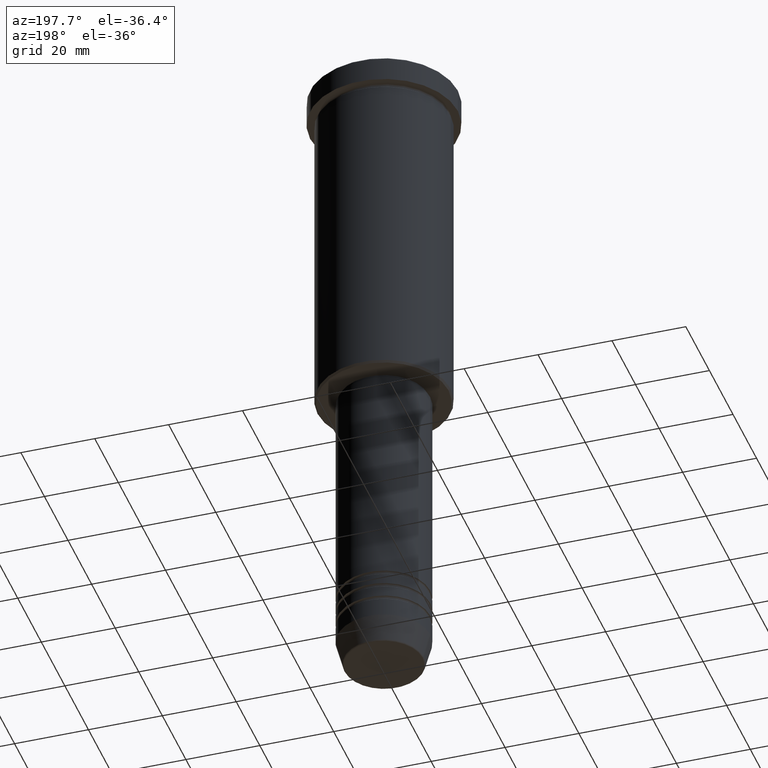
[diagram: clean part render]
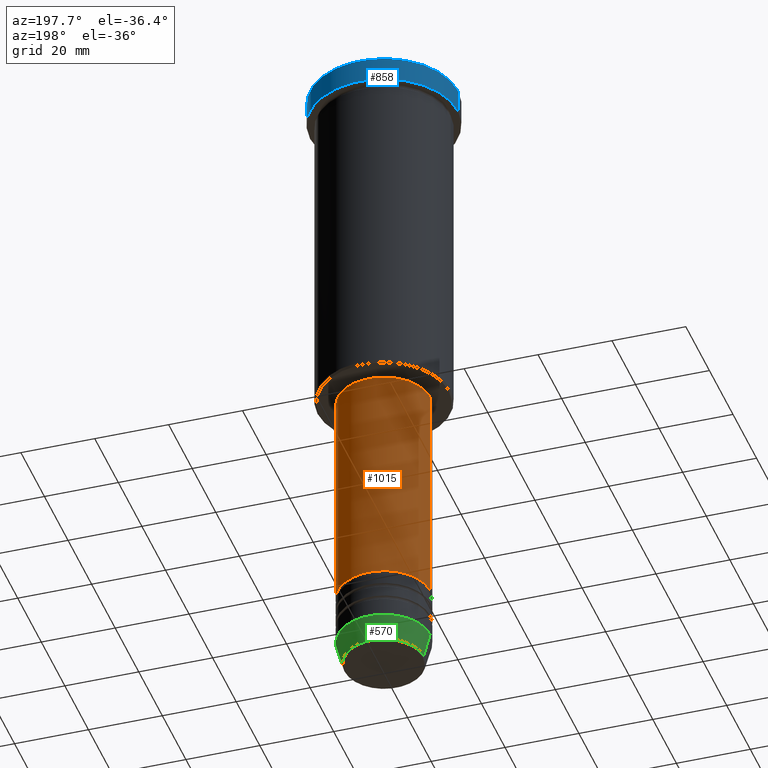
[diagram: same view with three faces highlighted in distinct colors, each labeled with its STEP entity id]
A machine part, auxiliary view with three faces highlighted in distinct colors.
Their STEP definitions:

[orange] entity #1015 — the highlighted cylindrical surface (partial cylindrical patch) has radius 12.5 mm, axis along (-0, -0, 1).
#17 = VERTEX_POINT ( 'NONE', #422 ) ;
#55 = VERTEX_POINT ( 'NONE', #611 ) ;
#82 = DIRECTION ( 'NONE',  ( -0.000000000000000000, -0.000000000000000000, 1.000000000000000000 ) ) ;
#131 = EDGE_CURVE ( 'NONE', #17, #207, #653, .T. ) ;
#146 = VECTOR ( 'NONE', #723, 1000.000000000000000 ) ;
#154 = FACE_OUTER_BOUND ( 'NONE', #485, .T. ) ;
#207 = VERTEX_POINT ( 'NONE', #732 ) ;
#235 = EDGE_CURVE ( 'NONE', #331, #55, #950, .T. ) ;
#310 = CARTESIAN_POINT ( 'NONE',  ( 12.50000000000000000, 0.000000000000000000, -97.00000000000002842 ) ) ;
#331 = VERTEX_POINT ( 'NONE', #310 ) ;
#392 = VECTOR ( 'NONE', #707, 1000.000000000000000 ) ;
#422 = CARTESIAN_POINT ( 'NONE',  ( 12.50000000000000000, 0.000000000000000000, -159.0000000000000000 ) ) ;
#442 = DIRECTION ( 'NONE',  ( 1.000000000000000000, 0.000000000000000000, 0.000000000000000000 ) ) ;
#485 = EDGE_LOOP ( 'NONE', ( #1017, #1052, #756, #646 ) ) ;
#523 = CARTESIAN_POINT ( 'NONE',  ( 0.000000000000000000, 0.000000000000000000, 0.000000000000000000 ) ) ;
#588 = AXIS2_PLACEMENT_3D ( 'NONE', #523, #962, #1068 ) ;
#600 = CYLINDRICAL_SURFACE ( 'NONE', #588, 12.50000000000000000 ) ;
#611 = CARTESIAN_POINT ( 'NONE',  ( -12.50000000000000000, 1.530808498934191521E-15, -97.00000000000002842 ) ) ;
#625 = DIRECTION ( 'NONE',  ( -0.000000000000000000, -0.000000000000000000, 1.000000000000000000 ) ) ;
#633 = LINE ( 'NONE', #717, #146 ) ;
#646 = ORIENTED_EDGE ( 'NONE', *, *, #982, .F. ) ;
#653 = CIRCLE ( 'NONE', #990, 12.50000000000000000 ) ;
#707 = DIRECTION ( 'NONE',  ( -0.000000000000000000, -0.000000000000000000, 1.000000000000000000 ) ) ;
#717 = CARTESIAN_POINT ( 'NONE',  ( -12.50000000000000000, 1.530808498934191521E-15, 0.000000000000000000 ) ) ;
#723 = DIRECTION ( 'NONE',  ( -0.000000000000000000, -0.000000000000000000, 1.000000000000000000 ) ) ;
#732 = CARTESIAN_POINT ( 'NONE',  ( -12.50000000000000000, 1.530808498934191521E-15, -159.0000000000000000 ) ) ;
#756 = ORIENTED_EDGE ( 'NONE', *, *, #235, .F. ) ;
#950 = CIRCLE ( 'NONE', #1028, 12.50000000000000000 ) ;
#962 = DIRECTION ( 'NONE',  ( -0.000000000000000000, -0.000000000000000000, 1.000000000000000000 ) ) ;
#974 = LINE ( 'NONE', #1153, #392 ) ;
#982 = EDGE_CURVE ( 'NONE', #17, #331, #974, .T. ) ;
#990 = AXIS2_PLACEMENT_3D ( 'NONE', #1075, #625, #442 ) ;
#1015 = ADVANCED_FACE ( 'NONE', ( #154 ), #600, .T. ) ;
#1017 = ORIENTED_EDGE ( 'NONE', *, *, #131, .T. ) ;
#1028 = AXIS2_PLACEMENT_3D ( 'NONE', #1181, #82, #1093 ) ;
#1052 = ORIENTED_EDGE ( 'NONE', *, *, #1182, .T. ) ;
#1068 = DIRECTION ( 'NONE',  ( 1.000000000000000000, 0.000000000000000000, 0.000000000000000000 ) ) ;
#1075 = CARTESIAN_POINT ( 'NONE',  ( 0.000000000000000000, 0.000000000000000000, -159.0000000000000000 ) ) ;
#1093 = DIRECTION ( 'NONE',  ( 1.000000000000000000, 0.000000000000000000, 0.000000000000000000 ) ) ;
#1153 = CARTESIAN_POINT ( 'NONE',  ( 12.50000000000000000, 0.000000000000000000, 0.000000000000000000 ) ) ;
#1181 = CARTESIAN_POINT ( 'NONE',  ( 0.000000000000000000, 0.000000000000000000, -97.00000000000002842 ) ) ;
#1182 = EDGE_CURVE ( 'NONE', #207, #55, #633, .T. ) ;

[blue] entity #858 — the highlighted cylindrical surface (partial cylindrical patch) has radius 20 mm, axis along (-0, -0, 1).
#6 = DIRECTION ( 'NONE',  ( 1.000000000000000000, 0.000000000000000000, 0.000000000000000000 ) ) ;
#18 = ORIENTED_EDGE ( 'NONE', *, *, #631, .T. ) ;
#19 = CYLINDRICAL_SURFACE ( 'NONE', #1156, 20.00000000000000000 ) ;
#24 = CARTESIAN_POINT ( 'NONE',  ( -20.00000000000000000, 2.449293598294706513E-15, 0.000000000000000000 ) ) ;
#42 = ORIENTED_EDGE ( 'NONE', *, *, #947, .F. ) ;
#119 = EDGE_LOOP ( 'NONE', ( #681, #1032, #18, #42 ) ) ;
#180 = DIRECTION ( 'NONE',  ( 1.000000000000000000, 0.000000000000000000, 0.000000000000000000 ) ) ;
#183 = VERTEX_POINT ( 'NONE', #816 ) ;
#256 = LINE ( 'NONE', #510, #652 ) ;
#266 = CARTESIAN_POINT ( 'NONE',  ( 0.000000000000000000, 0.000000000000000000, -6.999999999999995559 ) ) ;
#315 = AXIS2_PLACEMENT_3D ( 'NONE', #1014, #831, #6 ) ;
#319 = VECTOR ( 'NONE', #695, 1000.000000000000000 ) ;
#346 = DIRECTION ( 'NONE',  ( -0.000000000000000000, -0.000000000000000000, 1.000000000000000000 ) ) ;
#354 = EDGE_CURVE ( 'NONE', #183, #712, #596, .T. ) ;
#369 = CARTESIAN_POINT ( 'NONE',  ( -20.00000000000000000, 2.449293598294706513E-15, -0.4999999999999970024 ) ) ;
#400 = FACE_OUTER_BOUND ( 'NONE', #119, .T. ) ;
#446 = CARTESIAN_POINT ( 'NONE',  ( 20.00000000000000000, 0.000000000000000000, -0.4999999999999970024 ) ) ;
#453 = DIRECTION ( 'NONE',  ( -0.000000000000000000, -0.000000000000000000, 1.000000000000000000 ) ) ;
#475 = CIRCLE ( 'NONE', #531, 20.00000000000000000 ) ;
#510 = CARTESIAN_POINT ( 'NONE',  ( 20.00000000000000000, 0.000000000000000000, 0.000000000000000000 ) ) ;
#531 = AXIS2_PLACEMENT_3D ( 'NONE', #266, #453, #180 ) ;
#596 = LINE ( 'NONE', #24, #319 ) ;
#631 = EDGE_CURVE ( 'NONE', #712, #1139, #916, .T. ) ;
#652 = VECTOR ( 'NONE', #346, 1000.000000000000000 ) ;
#681 = ORIENTED_EDGE ( 'NONE', *, *, #747, .T. ) ;
#695 = DIRECTION ( 'NONE',  ( -0.000000000000000000, -0.000000000000000000, 1.000000000000000000 ) ) ;
#712 = VERTEX_POINT ( 'NONE', #369 ) ;
#747 = EDGE_CURVE ( 'NONE', #770, #183, #475, .T. ) ;
#770 = VERTEX_POINT ( 'NONE', #860 ) ;
#816 = CARTESIAN_POINT ( 'NONE',  ( -20.00000000000000000, 2.449293598294706513E-15, -6.999999999999995559 ) ) ;
#831 = DIRECTION ( 'NONE',  ( 0.000000000000000000, 0.000000000000000000, -1.000000000000000000 ) ) ;
#858 = ADVANCED_FACE ( 'NONE', ( #400 ), #19, .T. ) ;
#860 = CARTESIAN_POINT ( 'NONE',  ( 20.00000000000000000, 0.000000000000000000, -6.999999999999995559 ) ) ;
#866 = CARTESIAN_POINT ( 'NONE',  ( 0.000000000000000000, 0.000000000000000000, 0.000000000000000000 ) ) ;
#916 = CIRCLE ( 'NONE', #315, 20.00000000000000000 ) ;
#946 = DIRECTION ( 'NONE',  ( 1.000000000000000000, 0.000000000000000000, 0.000000000000000000 ) ) ;
#947 = EDGE_CURVE ( 'NONE', #770, #1139, #256, .T. ) ;
#1014 = CARTESIAN_POINT ( 'NONE',  ( 0.000000000000000000, 0.000000000000000000, -0.4999999999999970024 ) ) ;
#1030 = DIRECTION ( 'NONE',  ( -0.000000000000000000, -0.000000000000000000, 1.000000000000000000 ) ) ;
#1032 = ORIENTED_EDGE ( 'NONE', *, *, #354, .T. ) ;
#1139 = VERTEX_POINT ( 'NONE', #446 ) ;
#1156 = AXIS2_PLACEMENT_3D ( 'NONE', #866, #1030, #946 ) ;

[green] entity #570 — the highlighted conical surface has half-angle 15 deg.
#26 = VERTEX_POINT ( 'NONE', #541 ) ;
#139 = EDGE_CURVE ( 'NONE', #142, #26, #935, .T. ) ;
#142 = VERTEX_POINT ( 'NONE', #1016 ) ;
#150 = CARTESIAN_POINT ( 'NONE',  ( -12.50000000000000000, 1.530808498934191521E-15, -173.0000000000000284 ) ) ;
#163 = EDGE_LOOP ( 'NONE', ( #805, #566, #759, #1130 ) ) ;
#197 = VERTEX_POINT ( 'NONE', #754 ) ;
#284 = AXIS2_PLACEMENT_3D ( 'NONE', #1162, #348, #366 ) ;
#348 = DIRECTION ( 'NONE',  ( -0.000000000000000000, -0.000000000000000000, 1.000000000000000000 ) ) ;
#366 = DIRECTION ( 'NONE',  ( 1.000000000000000000, 0.000000000000000000, 0.000000000000000000 ) ) ;
#373 = AXIS2_PLACEMENT_3D ( 'NONE', #649, #376, #1106 ) ;
#376 = DIRECTION ( 'NONE',  ( -0.000000000000000000, -0.000000000000000000, 1.000000000000000000 ) ) ;
#426 = DIRECTION ( 'NONE',  ( -0.000000000000000000, -0.000000000000000000, 1.000000000000000000 ) ) ;
#518 = EDGE_CURVE ( 'NONE', #142, #667, #963, .T. ) ;
#519 = DIRECTION ( 'NONE',  ( -0.2588190451025213501, 3.169619151431772337E-17, 0.9659258262890680902 ) ) ;
#540 = CARTESIAN_POINT ( 'NONE',  ( 0.000000000000000000, 0.000000000000000000, -173.0000000000000284 ) ) ;
#541 = CARTESIAN_POINT ( 'NONE',  ( -10.72365507213719127, 1.422038742429750516E-15, -179.6294095225512706 ) ) ;
#556 = AXIS2_PLACEMENT_3D ( 'NONE', #540, #426, #898 ) ;
#566 = ORIENTED_EDGE ( 'NONE', *, *, #597, .T. ) ;
#568 = CARTESIAN_POINT ( 'NONE',  ( 12.50000000000000000, 0.000000000000000000, -173.0000000000000284 ) ) ;
#570 = ADVANCED_FACE ( 'NONE', ( #981 ), #993, .T. ) ;
#597 = EDGE_CURVE ( 'NONE', #26, #197, #607, .T. ) ;
#607 = LINE ( 'NONE', #150, #632 ) ;
#613 = VECTOR ( 'NONE', #1147, 1000.000000000000000 ) ;
#632 = VECTOR ( 'NONE', #519, 1000.000000000000000 ) ;
#649 = CARTESIAN_POINT ( 'NONE',  ( 0.000000000000000000, 0.000000000000000000, -173.0000000000000284 ) ) ;
#658 = EDGE_CURVE ( 'NONE', #667, #197, #781, .T. ) ;
#667 = VERTEX_POINT ( 'NONE', #568 ) ;
#726 = CARTESIAN_POINT ( 'NONE',  ( 12.50000000000000000, 0.000000000000000000, -173.0000000000000284 ) ) ;
#754 = CARTESIAN_POINT ( 'NONE',  ( -12.50000000000000000, 1.530808498934191521E-15, -173.0000000000000284 ) ) ;
#759 = ORIENTED_EDGE ( 'NONE', *, *, #658, .F. ) ;
#781 = CIRCLE ( 'NONE', #373, 12.50000000000000000 ) ;
#805 = ORIENTED_EDGE ( 'NONE', *, *, #139, .T. ) ;
#898 = DIRECTION ( 'NONE',  ( 1.000000000000000000, 0.000000000000000000, 0.000000000000000000 ) ) ;
#935 = CIRCLE ( 'NONE', #284, 10.72365507213719127 ) ;
#963 = LINE ( 'NONE', #726, #613 ) ;
#981 = FACE_OUTER_BOUND ( 'NONE', #163, .T. ) ;
#993 = CONICAL_SURFACE ( 'NONE', #556, 12.50000000000000000, 0.2617993877991500740 ) ;
#1016 = CARTESIAN_POINT ( 'NONE',  ( 10.72365507213719127, 0.000000000000000000, -179.6294095225512706 ) ) ;
#1106 = DIRECTION ( 'NONE',  ( 1.000000000000000000, 0.000000000000000000, 0.000000000000000000 ) ) ;
#1130 = ORIENTED_EDGE ( 'NONE', *, *, #518, .F. ) ;
#1147 = DIRECTION ( 'NONE',  ( 0.2588190451025213501, 0.000000000000000000, 0.9659258262890680902 ) ) ;
#1162 = CARTESIAN_POINT ( 'NONE',  ( 0.000000000000000000, 0.000000000000000000, -179.6294095225512706 ) ) ;